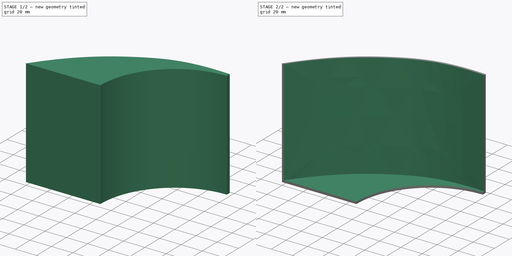
[diagram: build sequence overview — one tinted view per stage of 2, left to right]
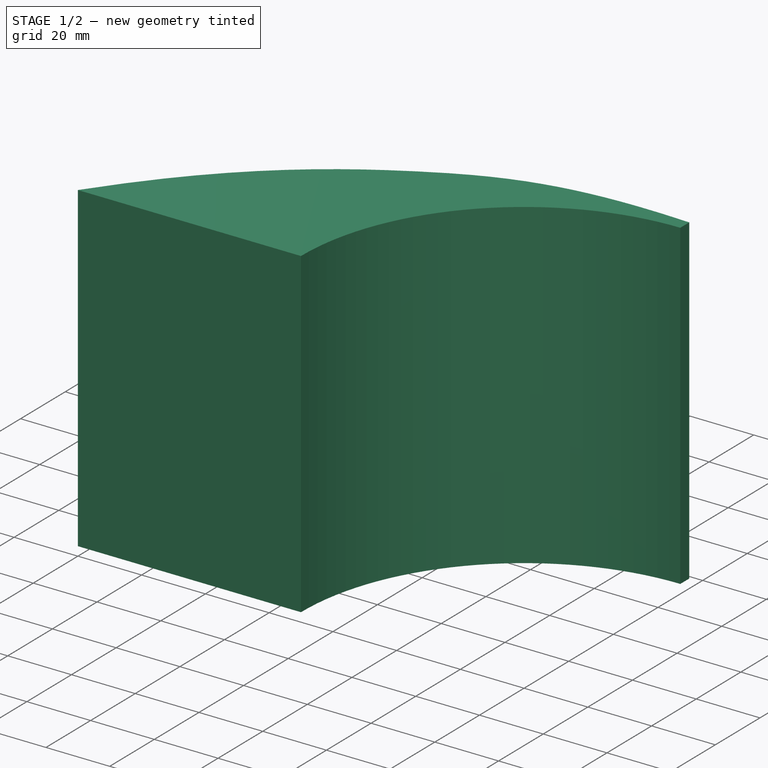
[diagram: stage 1 of 2 — iso view after this stage's code; geometry added in this stage tinted green]
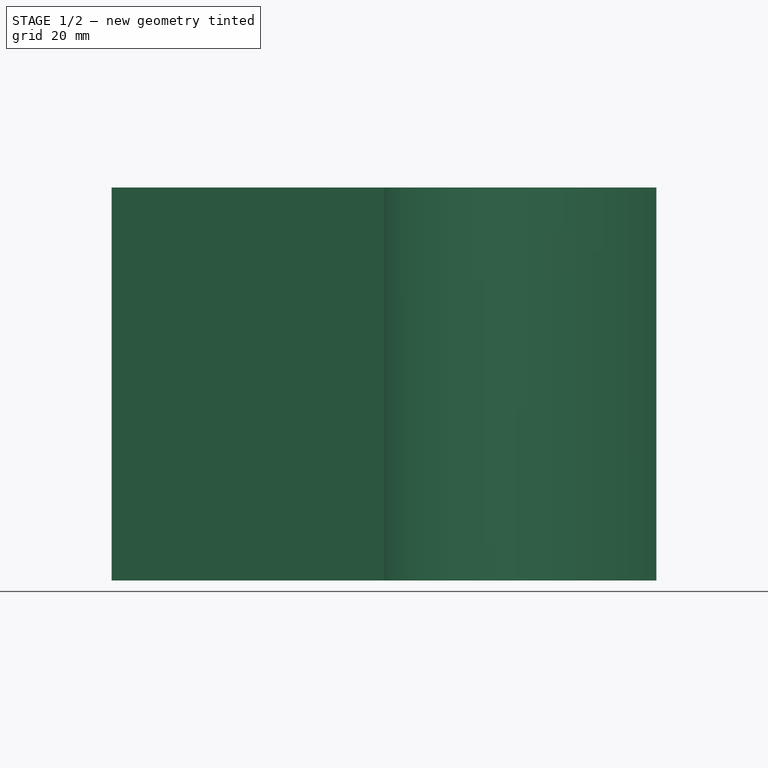
[diagram: stage 1 of 2 — front view after this stage's code; geometry added in this stage tinted green]
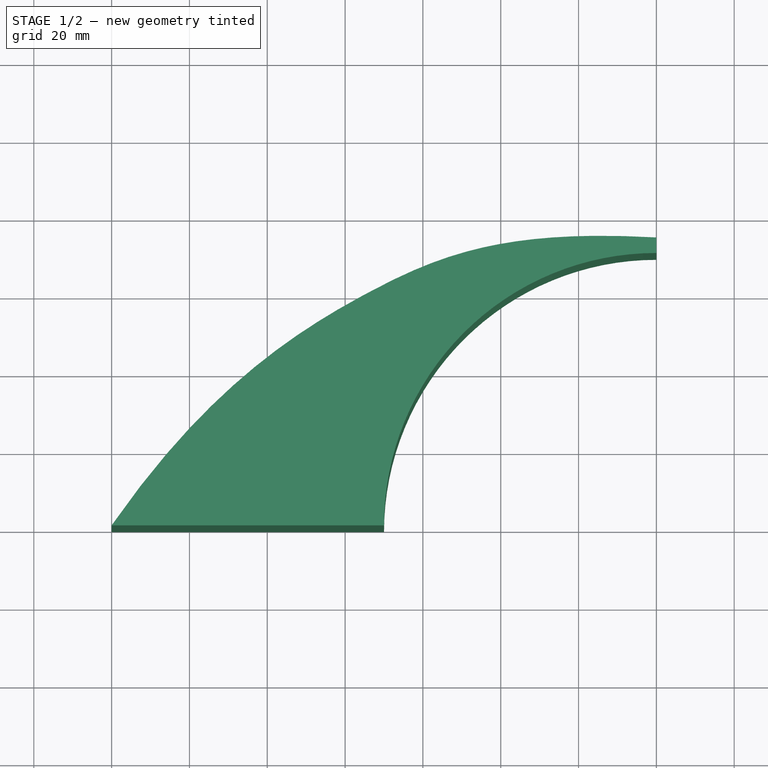
[diagram: stage 1 of 2 — top view after this stage's code; geometry added in this stage tinted green]
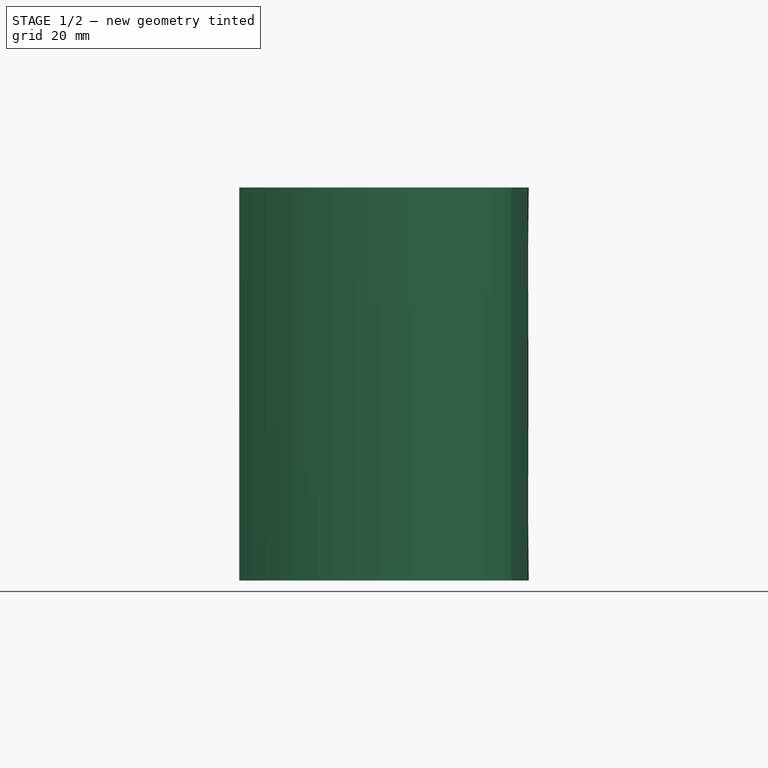
[diagram: stage 1 of 2 — right view after this stage's code; geometry added in this stage tinted green]
FCSTD DOCUMENT  (FreeCAD 0.18R16110 (Git))
Label: saviniuswing
License: All rights reserved
LicenseURL: http://en.wikipedia.org/wiki/All_rights_reserved
objects: Sketcher::SketchObject×2, PartDesign::Pad×2, PartDesign::Body×2, Part::Cut×1
note: 9 computed .brp shape members not serialized (recipe doc carries the construction recipe); baked Part::Feature solids carry a one-line shape summary decoded from their .brp

FEATURE [Sketcher::SketchObject] Sketch
  MapMode = 5
  Support = -> [XY_Plane]
  sketch-geometry (11):
    g0: ArcOfCircle CenterX=0 CenterY=0 CenterZ=0 NormalX=0 NormalY=0 NormalZ=1 AngleXU=0 Radius=70 StartAngle=1.5708 EndAngle=3.14159
    g1: LineSegment StartX=-70 StartY=0 StartZ=0 EndX=-140 EndY=0 EndZ=0
    g2-g6: Circle [constr] x5 (B-spline internal-alignment scaffolding for g7; pole/knot coordinates omitted)
    g7: BSplineCurve PolesCount=5 KnotsCount=3 Degree=3 IsPeriodic=0
    g8: GeomPoint [constr] X=-140 Y=0 Z=0
    g9: GeomPoint [constr] X=-76.7438 Y=58.1806 Z=0
    g10: LineSegment StartX=0 StartY=74 StartZ=0 EndX=4.3e-15 EndY=70 EndZ=0
  constraints (21):
    c: Coincident(g0,g-1)
    c: PointOnObject(g0,g-2)
    c: PointOnObject(g1,g-1)
    c: Horizontal(g1)
    c: DistanceX(g1) = -140
    c: Coincident(g7,g1)
    c: Radius(g2) = 6
    c: Equal(g2, g3-g6) x4
    c: PointOnObject(g7,g-2)
    c: InternalAlignment(g2-g6 -> g7) x5
    c: Coincident(g10,g7)
    c: Coincident(g10,g0)
    c: DistanceY(g10,g10) = 4
    c: DistanceX(g5) = -38.2016
    c: DistanceY(g5) = 76.1364
    c: DistanceX(g4) = -72.3076
    c: DistanceY(g4) = 63.783
    c: DistanceX(g3) = -116.216
    c: DistanceY(g3) = 34.1081
    c: Coincident(g0,g1)
    c: DistanceX(g0) = -70
FEATURE [PartDesign::Pad] Pad
  Length = 101
  Length2 = 100
  Profile = -> Sketch
  Type = 0
FEATURE [PartDesign::Body] Body
  Group = -> [Sketch,Pad]
  Origin = -> Origin
  Tip = -> Pad
FEATURE [Sketcher::SketchObject] Sketch001
  MapMode = 5
  Support = -> [XY_Plane002]
  sketch-geometry (11):
    g0: ArcOfCircle CenterX=0 CenterY=0 CenterZ=0 NormalX=0 NormalY=0 NormalZ=1 AngleXU=0 Radius=70 StartAngle=1.5708 EndAngle=3.14159
    g1: LineSegment StartX=-70 StartY=8.6e-15 StartZ=0 EndX=-140 EndY=8.6e-15 EndZ=0
    g2-g6: Circle [constr] x5 (B-spline internal-alignment scaffolding for g7; pole/knot coordinates omitted)
    g7: BSplineCurve PolesCount=5 KnotsCount=3 Degree=3 IsPeriodic=0
    g8: GeomPoint [constr] X=-140 Y=0 Z=0
    g9: GeomPoint [constr] X=-76.7438 Y=58.1806 Z=0
    g10: LineSegment StartX=0 StartY=74 StartZ=0 EndX=4.3e-15 EndY=70 EndZ=0
  constraints (21):
    c: Coincident(g0,g-1)
    c: PointOnObject(g0,g-2)
    c: PointOnObject(g1,g-1)
    c: Horizontal(g1)
    c: DistanceX(g1) = -140
    c: Coincident(g7,g1)
    c: Radius(g2) = 6
    c: Equal(g2, g3-g6) x4
    c: PointOnObject(g7,g-2)
    c: InternalAlignment(g2-g6 -> g7) x5
    c: Coincident(g10,g7)
    c: Coincident(g10,g0)
    c: DistanceY(g10,g10) = 4
    c: DistanceX(g5) = -38.2016
    c: DistanceY(g5) = 76.1364
    c: DistanceX(g4) = -72.3076
    c: DistanceY(g4) = 63.783
    c: DistanceX(g3) = -116.216
    c: DistanceY(g3) = 34.1081
    c: Coincident(g0,g1)
    c: DistanceX(g0) = -70
FEATURE [PartDesign::Pad] Pad001
  Length = 101
  Length2 = 100
  Profile = -> Sketch001
  Type = 0
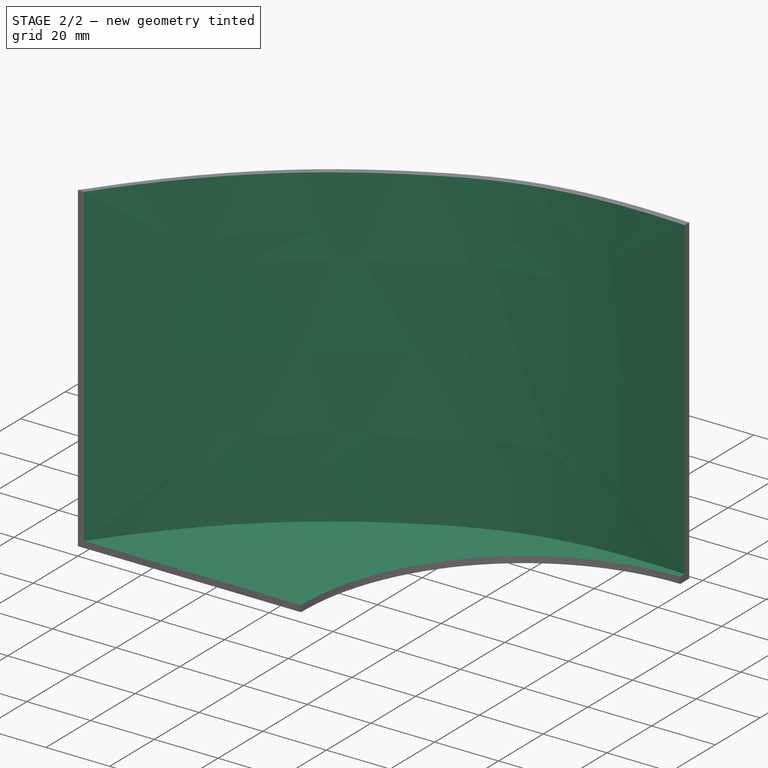
[diagram: stage 2 of 2 — iso view after this stage's code; geometry added in this stage tinted green]
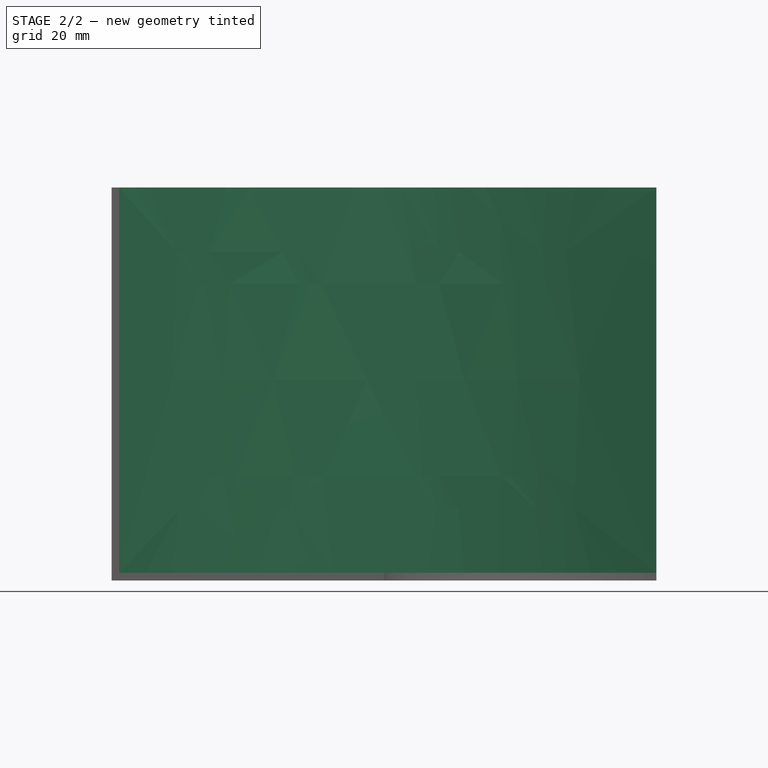
[diagram: stage 2 of 2 — front view after this stage's code; geometry added in this stage tinted green]
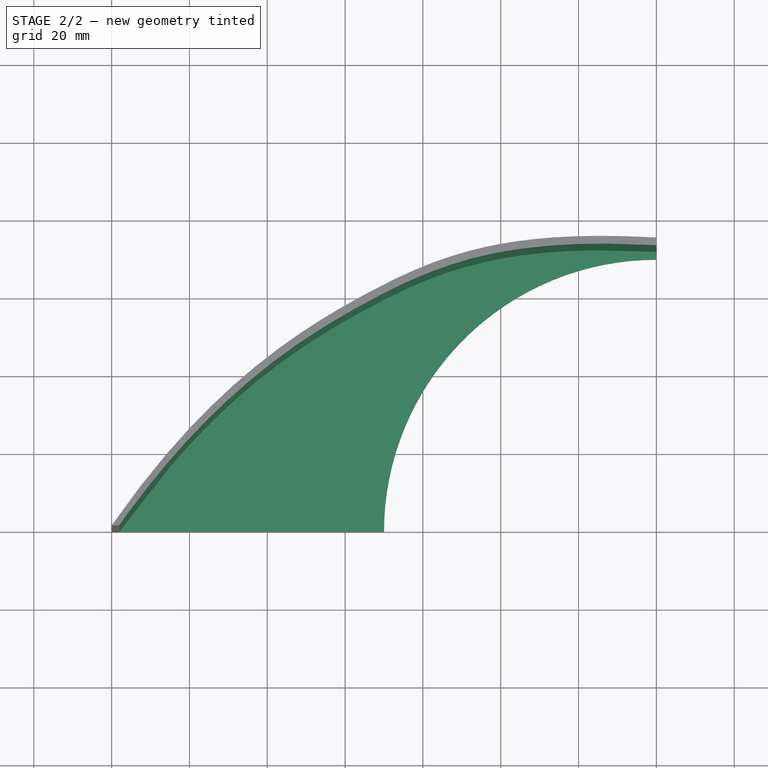
[diagram: stage 2 of 2 — top view after this stage's code; geometry added in this stage tinted green]
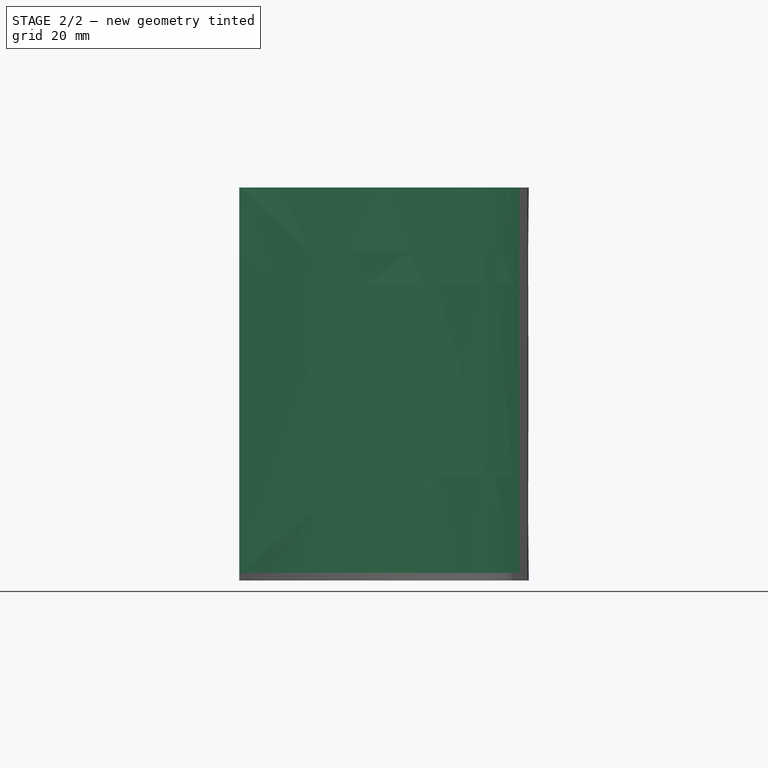
[diagram: stage 2 of 2 — right view after this stage's code; geometry added in this stage tinted green]
FEATURE [PartDesign::Body] Body001
  Group = -> [Sketch001,Pad001]
  Origin = -> Origin001
  Placement = pos=(0.5,-2,2) rot=(0,0,1;0rad)
  Tip = -> Pad001
FEATURE [Part::Cut] Cut
  Base = -> Body
  Tool = -> Body001
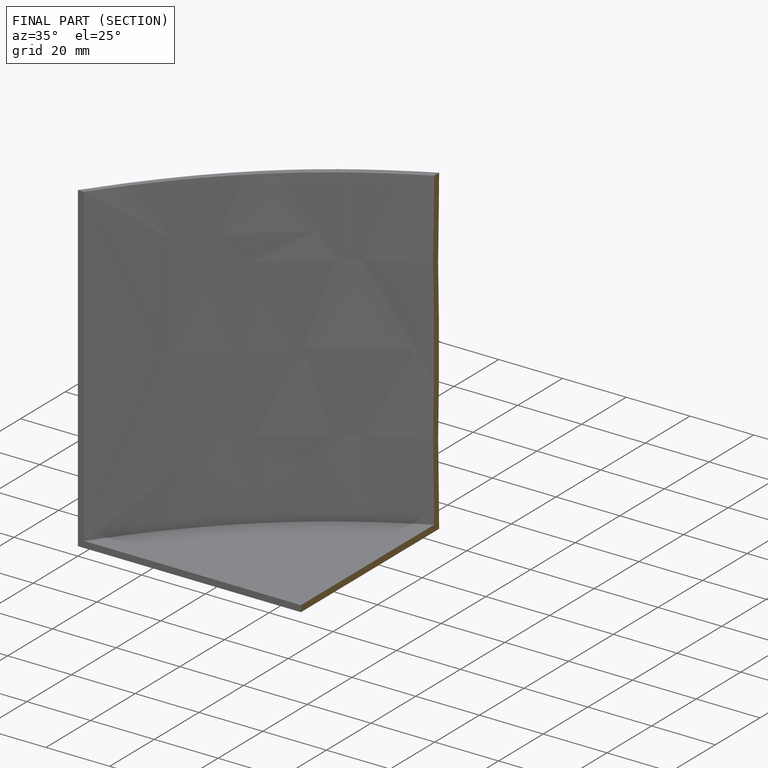
[diagram: finished part — half-section view (interior)]
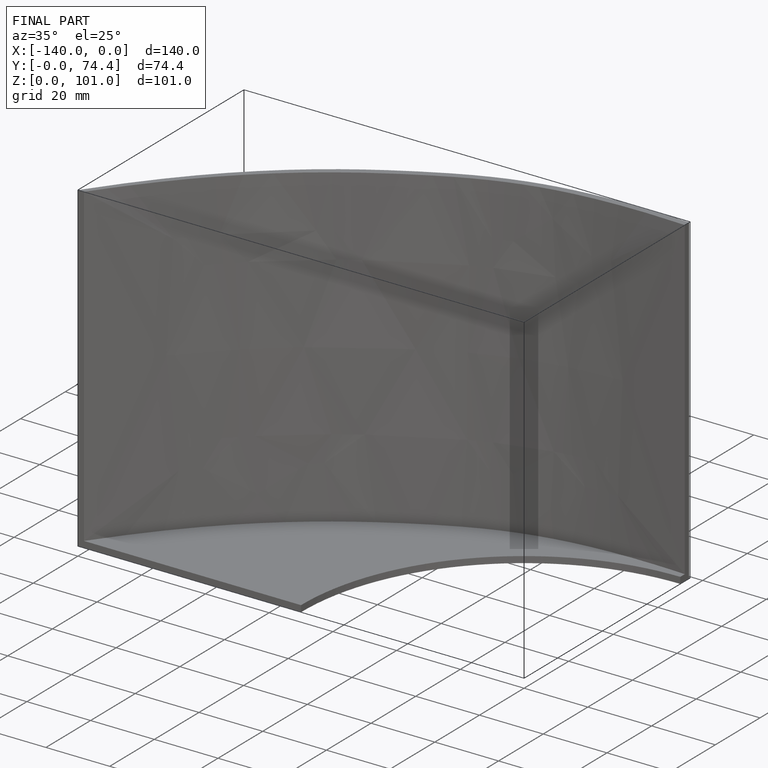
[diagram: finished part — iso view with bounding-box wireframe]
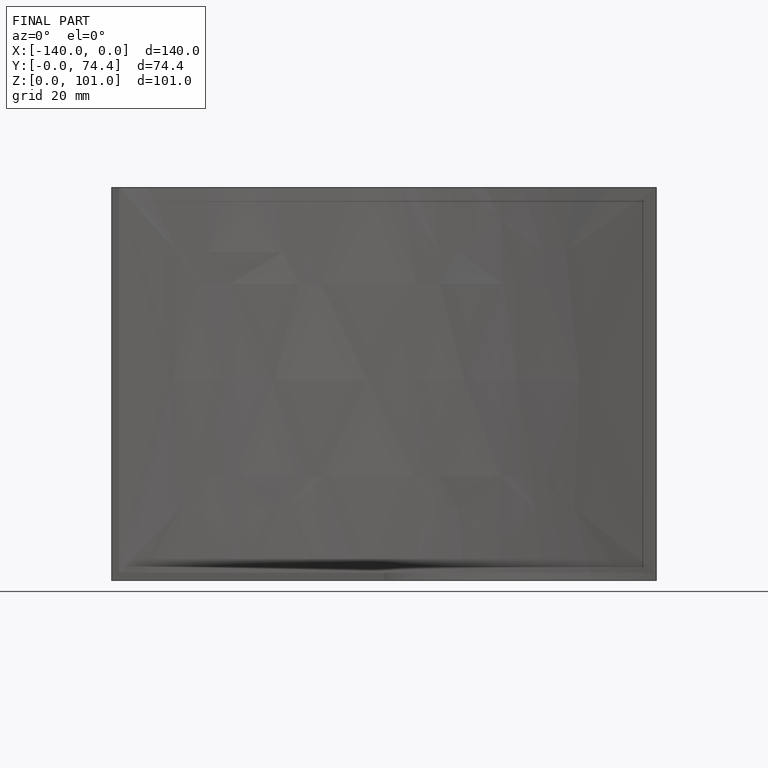
[diagram: finished part — front view with bounding-box wireframe]
